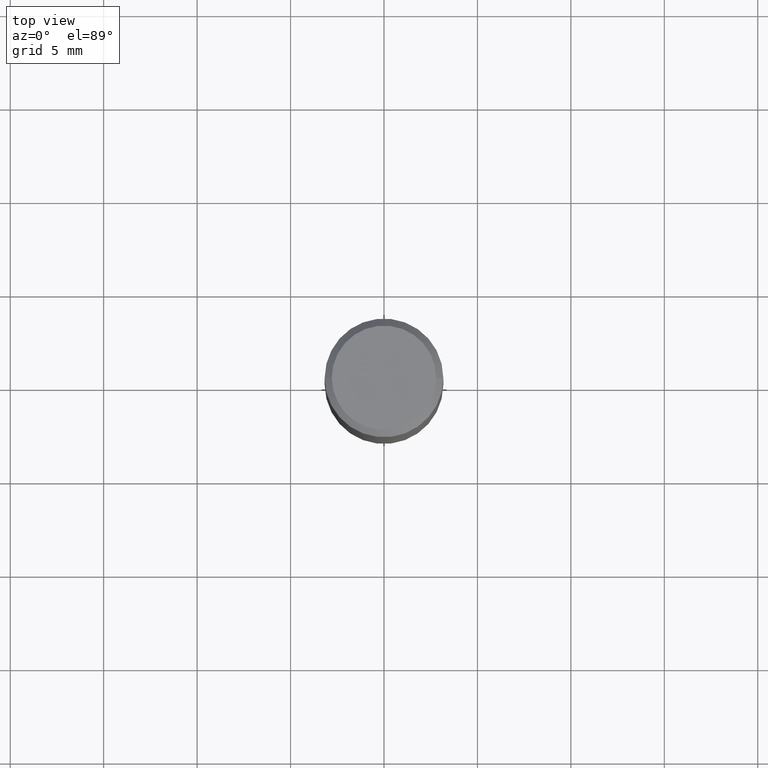
[diagram: clean part render]
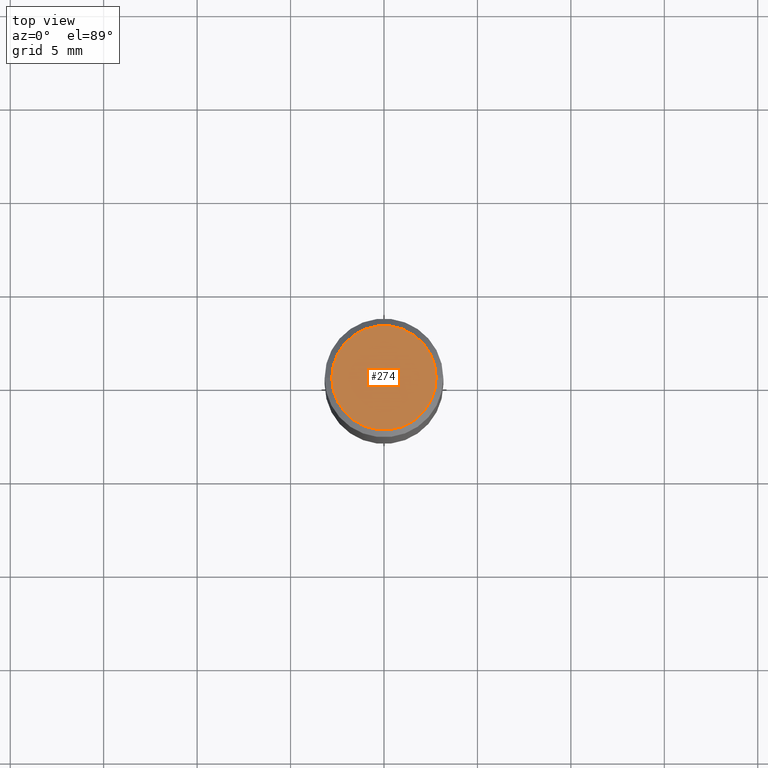
[diagram: same view with one face highlighted and labeled with its STEP entity id]
A machine part, top view. The second image highlights one B-rep face of the part: STEP entity #274.
In plain terms, the highlighted planar face has unit normal (0, -0, -1).
Its self-contained STEP definition (entity closure, byte-faithful):
#13 = CIRCLE ( 'NONE', #288, 0.1100000000000000006 ) ;
#20 = DIRECTION ( 'NONE',  ( -1.000000000000000000, 6.982962677686265922E-15, -4.876176775795935793E-29 ) ) ;
#33 = EDGE_CURVE ( 'NONE', #459, #207, #13, .T. ) ;
#43 = CARTESIAN_POINT ( 'NONE',  ( 7.681258945454893776E-16, 0.1100000000000000006, -1.545800150669300521E-16 ) ) ;
#89 = CIRCLE ( 'NONE', #115, 0.1100000000000000006 ) ;
#102 = DIRECTION ( 'NONE',  ( -2.445468806185136597E-29, 3.491481338843145583E-15, 1.000000000000000000 ) ) ;
#110 = ORIENTED_EDGE ( 'NONE', *, *, #364, .T. ) ;
#115 = AXIS2_PLACEMENT_3D ( 'NONE', #448, #102, #133 ) ;
#133 = DIRECTION ( 'NONE',  ( 1.000000000000000000, -6.982962677686266711E-15, 4.852736867747365646E-29 ) ) ;
#192 = EDGE_LOOP ( 'NONE', ( #342, #110 ) ) ;
#194 = DIRECTION ( 'NONE',  ( 2.438088387897960049E-29, -3.491481338843145188E-15, -1.000000000000000000 ) ) ;
#200 = DIRECTION ( 'NONE',  ( 1.000000000000000000, -6.982962677686266711E-15, 4.852736867747365646E-29 ) ) ;
#207 = VERTEX_POINT ( 'NONE', #226 ) ;
#226 = CARTESIAN_POINT ( 'NONE',  ( 0.1100000000000000006, -8.322946247794777961E-16, 4.589658644116375565E-16 ) ) ;
#274 = ADVANCED_FACE ( 'NONE', ( #285 ), #465, .F. ) ;
#285 = FACE_OUTER_BOUND ( 'NONE', #192, .T. ) ;
#288 = AXIS2_PLACEMENT_3D ( 'NONE', #380, #383, #200 ) ;
#305 = CARTESIAN_POINT ( 'NONE',  ( -0.1100000000000000006, 7.943120045868136075E-16, 4.589658644116265124E-16 ) ) ;
#342 = ORIENTED_EDGE ( 'NONE', *, *, #33, .T. ) ;
#364 = EDGE_CURVE ( 'NONE', #207, #459, #89, .T. ) ;
#380 = CARTESIAN_POINT ( 'NONE',  ( -1.122386704522442906E-44, 1.602470750759226619E-30, 4.589658644116320345E-16 ) ) ;
#383 = DIRECTION ( 'NONE',  ( -2.445468806185136597E-29, 3.491481338843145583E-15, 1.000000000000000000 ) ) ;
#440 = AXIS2_PLACEMENT_3D ( 'NONE', #43, #194, #20 ) ;
#448 = CARTESIAN_POINT ( 'NONE',  ( -1.122386704522442906E-44, 1.602470750759226619E-30, 4.589658644116320345E-16 ) ) ;
#459 = VERTEX_POINT ( 'NONE', #305 ) ;
#465 = PLANE ( 'NONE',  #440 ) ;